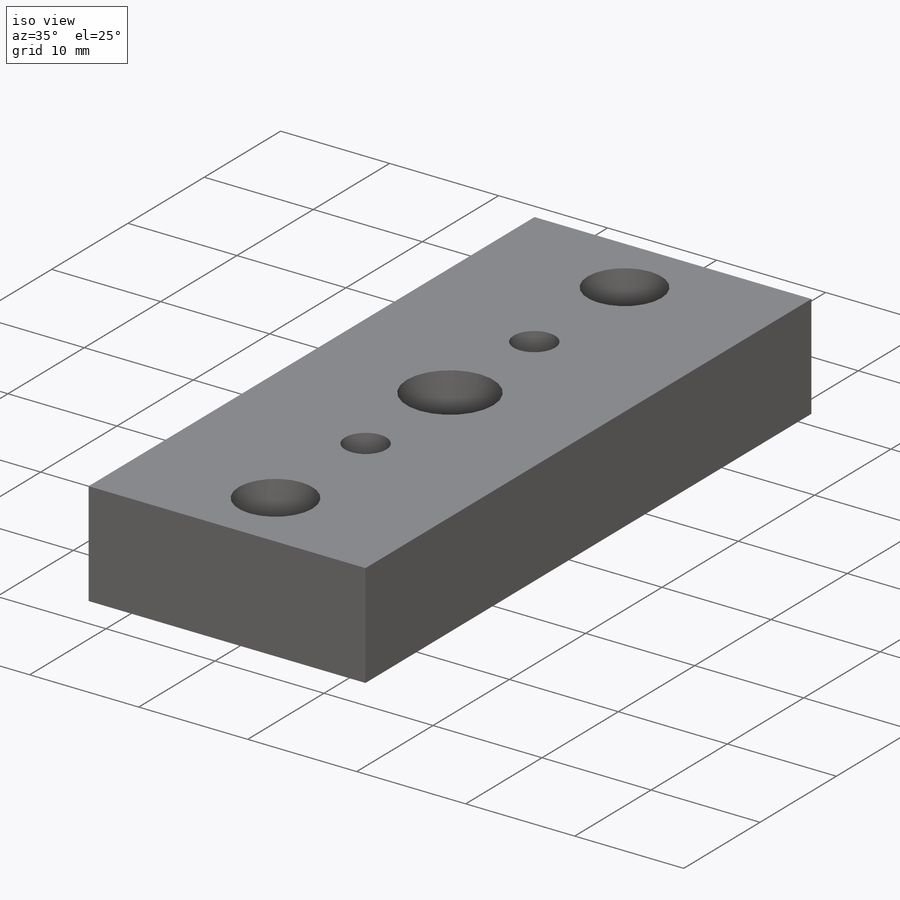
[diagram: iso view]
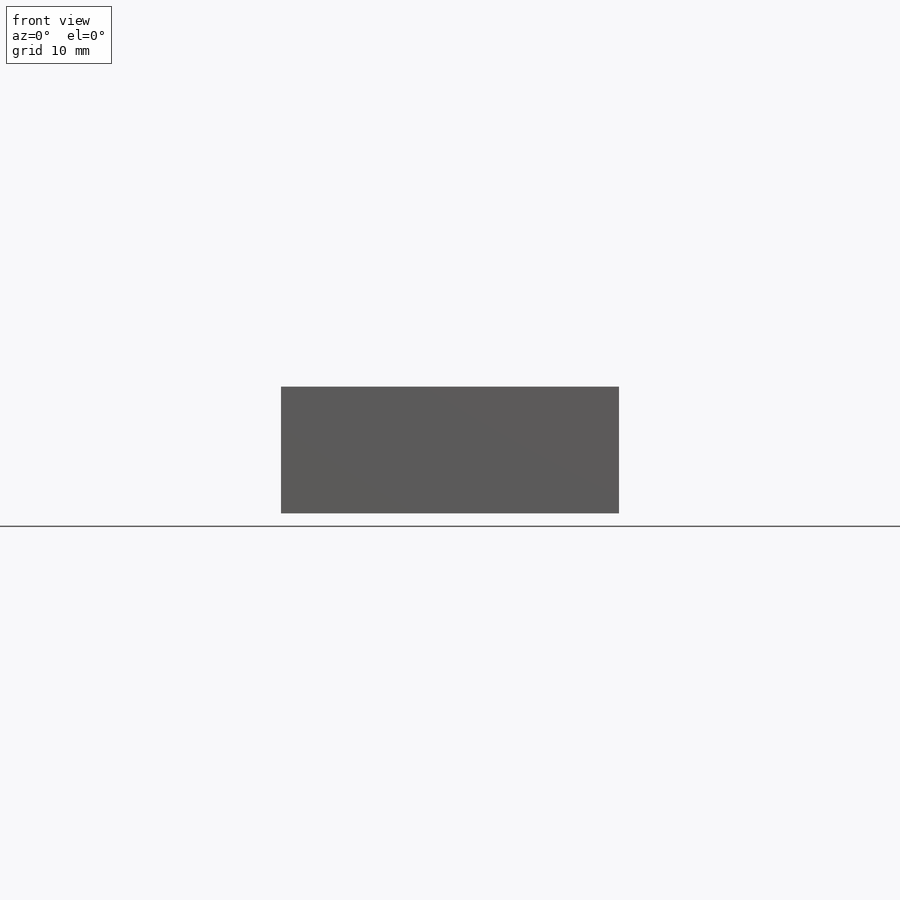
[diagram: front view]
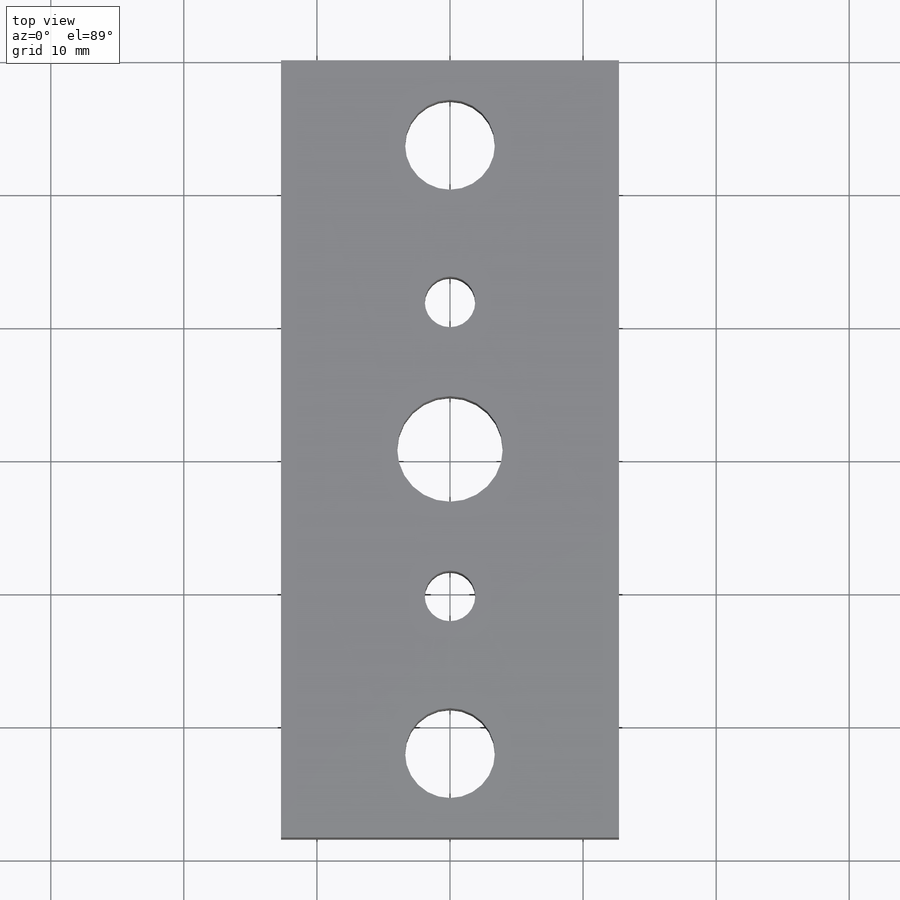
[diagram: top view]
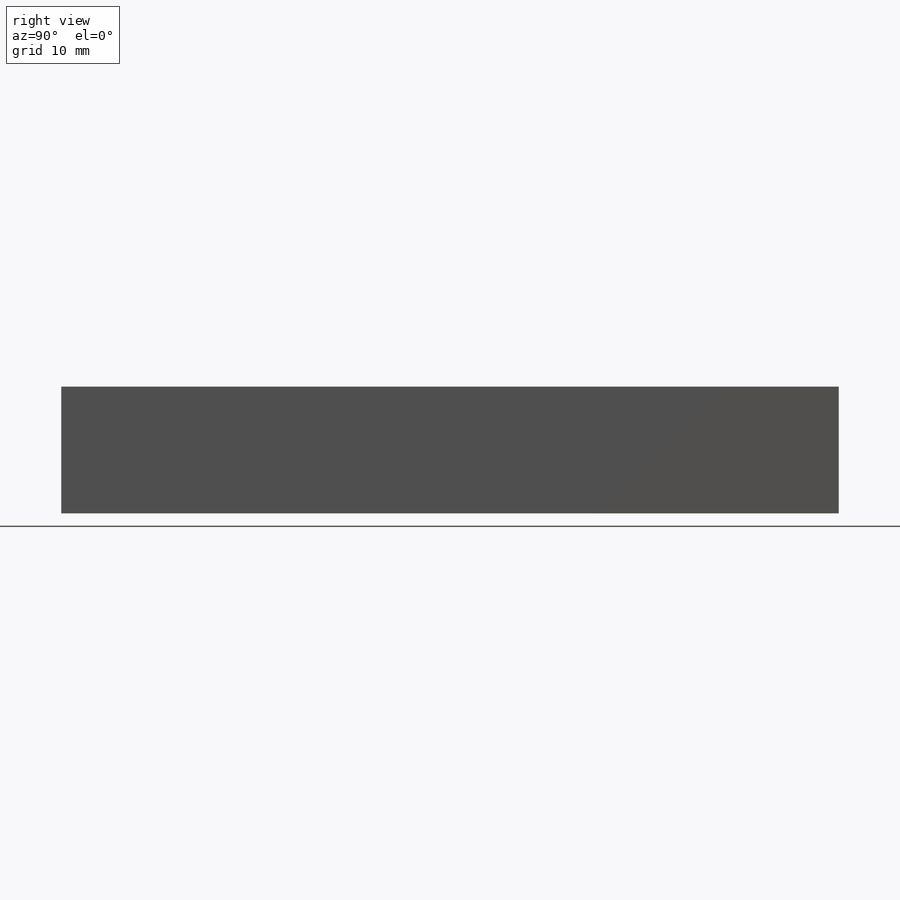
[diagram: right view]
SOLIDWORKS PART (.sldprt)
format: sldprt  version: not decoded by parser v0  size: 229,376 bytes
history: native  units: mm
features: sketch x8, hole x3, material x1, extrude x1, pattern_circular x1 (+12 scaffold rows collapsed)
feature tree (26):
  scaffold x12  (default folders/planes/origin — collapsed)
  material  "6061-T6 (SS)"
  sketch  "Sketch1"  dims[D1=9.525mm]
  extrude  "Extrude1"  Depth=58.42mm
  sketch  "Sketch2"  dims[c1.D1=6.35mm c1.D2=11.049mm c1.D3=6.35mm c2.D1=45.72mm c2.D3=6.35mm]
  hole  "1/4 Clearance Hole1"  Diameter=6.7564mm Depth=12.7mm
  sketch  "3DSketch1"
  sketch  "Sketch3"  dims[hole-wizard template sketch: 50 standard entries collapsed; hole parameters above]
  hole  "3/8-16 Tapped Hole1"  Diameter=7.9375mm Depth=9.525mm
  sketch  "3DSketch3"
  sketch  "Sketch5"  dims[hole-wizard template sketch: 59 standard entries collapsed; hole parameters kept: c18.Thread Major Dia.=7.9375mm c18.Thru Tap Drill Depth=9.525mm]
  hole  "#10-24 Tapped Hole1"  Diameter=3.7973mm Depth=9.525mm
  sketch  "3DSketch4"
  sketch  "Sketch6"  dims[hole-wizard template sketch: 59 standard entries collapsed; hole parameters kept: c18.Thread Major Dia.=3.7973mm c18.Thru Tap Drill Depth=9.525mm]
  pattern_circular  "CirPattern1"  Count=2 Angle=360deg
decode coverage: 10 of 13 modeling features carry decoded parameters
note: ~ marks probable driven/reference dimensions
note: suppression state not decoded; provenance and decode notes live in map.json
